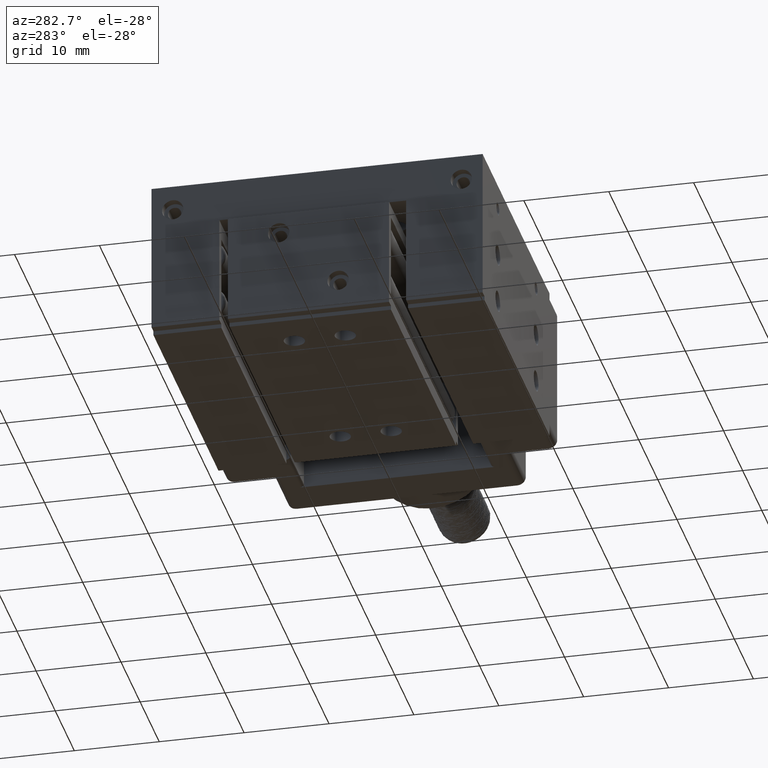
[diagram: clean part render]
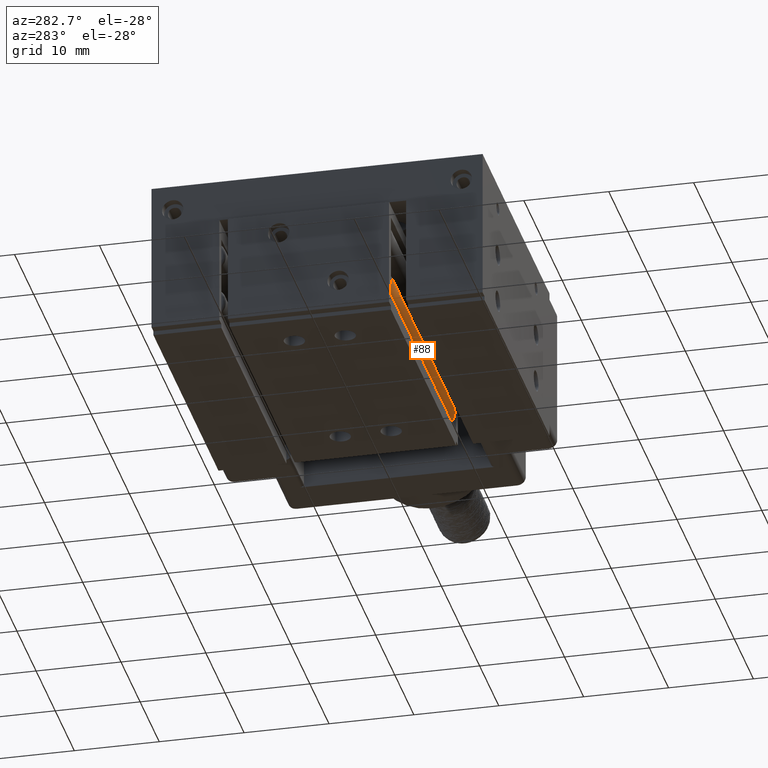
[diagram: same view with one face highlighted and labeled with its STEP entity id]
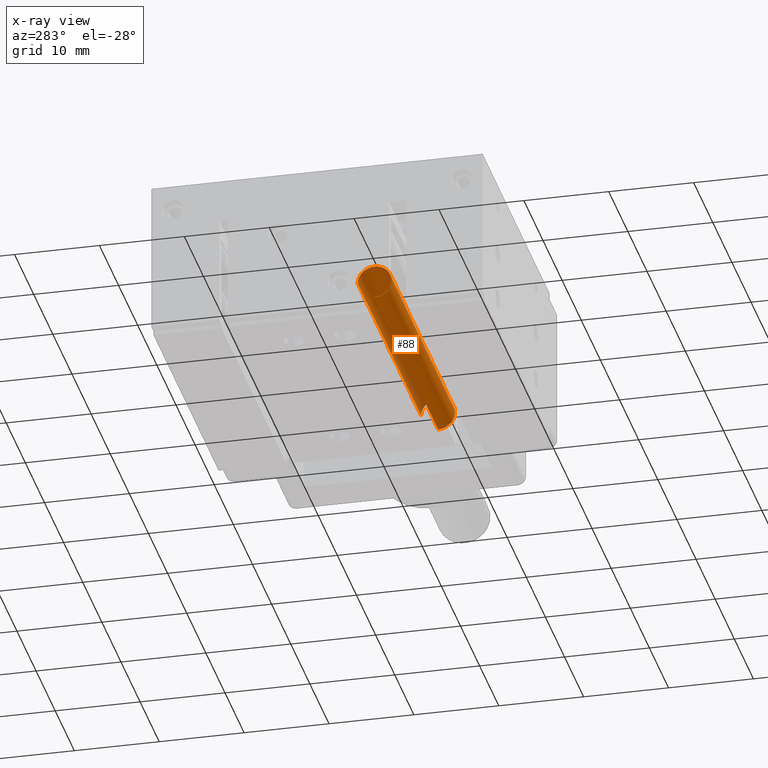
[diagram: x-ray of the same camera — body ghosted, the highlighted face saturated]
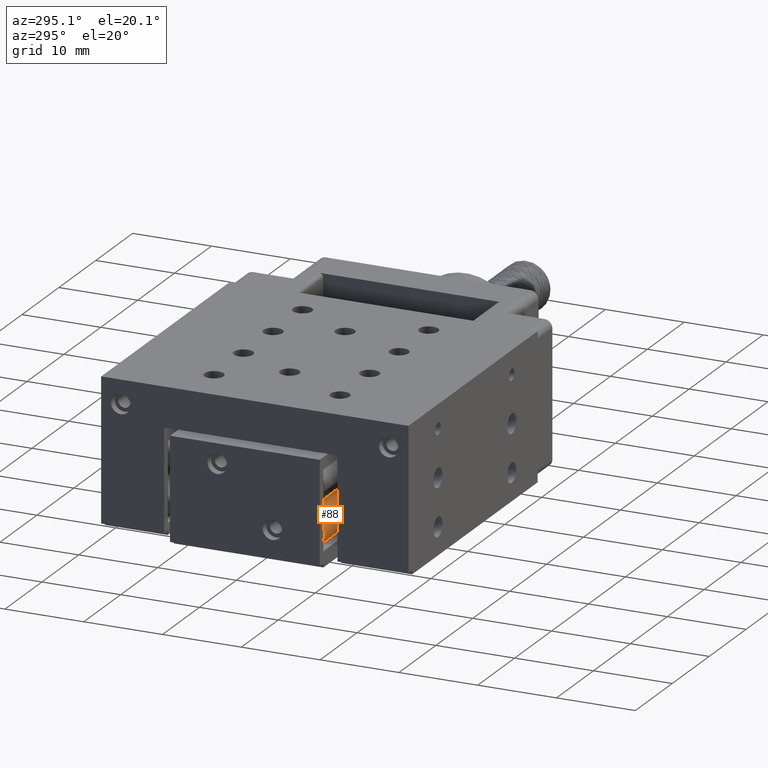
[diagram: same view with one face highlighted and labeled with its STEP entity id]
A machine part, auxiliary view. The second image highlights one B-rep face of the part: STEP entity #88.
The next image is the same camera in x-ray: the body ghosted, the highlighted face saturated — about 14% of this face is hidden behind the body in this view.
A second angle (auxiliary view) of the same face is appended — the face is thin or edge-on in the first view.
In plain terms, the highlighted cylindrical surface (edge-blend (fillet) strip) has radius 2 mm, axis along (-1, 0, 0).
Its self-contained STEP definition (entity closure, byte-faithful):
#88=ADVANCED_FACE('',(#674),#8110,.T.);
#674=FACE_OUTER_BOUND('',#1193,.T.);
#1193=EDGE_LOOP('',(#2060,#2061,#2062,#2063,#2064,#2065,#2066,#2067));
#2060=ORIENTED_EDGE('',*,*,#4655,.T.);
#2061=ORIENTED_EDGE('',*,*,#4652,.F.);
#2062=ORIENTED_EDGE('',*,*,#4647,.F.);
#2063=ORIENTED_EDGE('',*,*,#4653,.F.);
#2064=ORIENTED_EDGE('',*,*,#4656,.T.);
#2065=ORIENTED_EDGE('',*,*,#4716,.T.);
#2066=ORIENTED_EDGE('',*,*,#4787,.T.);
#2067=ORIENTED_EDGE('',*,*,#4657,.F.);
#4647=EDGE_CURVE('',#7421,#7424,#5925,.T.);
#4652=EDGE_CURVE('',#7424,#7426,#5930,.T.);
#4653=EDGE_CURVE('',#7425,#7421,#5931,.T.);
#4655=EDGE_CURVE('',#7428,#7426,#6474,.T.);
#4656=EDGE_CURVE('',#7425,#7429,#6475,.T.);
#4657=EDGE_CURVE('',#7428,#7430,#5933,.T.);
#4716=EDGE_CURVE('',#7429,#7488,#5985,.T.);
#4787=EDGE_CURVE('',#7488,#7430,#6016,.T.);
#5925=(
BOUNDED_CURVE()
B_SPLINE_CURVE(2,(#11613,#11614,#11615,#11616,#11617),.UNSPECIFIED.,.F.,
 .F.)
B_SPLINE_CURVE_WITH_KNOTS((3,2,3),(0.,2.67035375555132,5.34070751110265),
 .UNSPECIFIED.)
CURVE()
GEOMETRIC_REPRESENTATION_ITEM()
RATIONAL_B_SPLINE_CURVE((1.,0.707106781186541,1.,0.707106781186541,1.))
REPRESENTATION_ITEM('')
);
#5930=(
BOUNDED_CURVE()
B_SPLINE_CURVE(2,(#11634,#11635,#11636),.UNSPECIFIED.,.F.,.F.)
B_SPLINE_CURVE_WITH_KNOTS((3,3),(5.34070751110265,6.09380948762788),
 .UNSPECIFIED.)
CURVE()
GEOMETRIC_REPRESENTATION_ITEM()
RATIONAL_B_SPLINE_CURVE((1.,0.975568879419639,1.))
REPRESENTATION_ITEM('')
);
#5931=(
BOUNDED_CURVE()
B_SPLINE_CURVE(2,(#11637,#11638,#11639),.UNSPECIFIED.,.F.,.F.)
B_SPLINE_CURVE_WITH_KNOTS((3,3),(8.76416324317922,10.6814150222053),
 .UNSPECIFIED.)
CURVE()
GEOMETRIC_REPRESENTATION_ITEM()
RATIONAL_B_SPLINE_CURVE((1.,0.845178339076333,1.))
REPRESENTATION_ITEM('')
);
#5933=(
BOUNDED_CURVE()
B_SPLINE_CURVE(2,(#11647,#11648,#11649),.UNSPECIFIED.,.F.,.F.)
B_SPLINE_CURVE_WITH_KNOTS((3,3),(9.92831304568006,10.6814150222053),
 .UNSPECIFIED.)
CURVE()
GEOMETRIC_REPRESENTATION_ITEM()
RATIONAL_B_SPLINE_CURVE((1.,0.975568879419682,1.))
REPRESENTATION_ITEM('')
);
#5985=(
BOUNDED_CURVE()
B_SPLINE_CURVE(2,(#12020,#12021,#12022),.UNSPECIFIED.,.F.,.F.)
B_SPLINE_CURVE_WITH_KNOTS((3,3),(0.,2.25559032826608),.UNSPECIFIED.)
CURVE()
GEOMETRIC_REPRESENTATION_ITEM()
RATIONAL_B_SPLINE_CURVE((1.,0.845178339076413,1.))
REPRESENTATION_ITEM('')
);
#6016=(
BOUNDED_CURVE()
B_SPLINE_CURVE(2,(#12632,#12633,#12634,#12635,#12636),.UNSPECIFIED.,.F.,
 .F.)
B_SPLINE_CURVE_WITH_KNOTS((3,2,3),(2.25559032826608,4.92594408381742,7.59629783936875),
 .UNSPECIFIED.)
CURVE()
GEOMETRIC_REPRESENTATION_ITEM()
RATIONAL_B_SPLINE_CURVE((1.,0.707106781186546,1.,0.707106781186549,1.))
REPRESENTATION_ITEM('')
);
#6474=B_SPLINE_CURVE_WITH_KNOTS('',1,(#11643,#11644),.UNSPECIFIED.,.F.,
 .F.,(2,2),(0.,33.2000000000001),.UNSPECIFIED.);
#6475=B_SPLINE_CURVE_WITH_KNOTS('',1,(#11645,#11646),.UNSPECIFIED.,.F.,
 .F.,(2,2),(0.,33.2),.UNSPECIFIED.);
#7421=VERTEX_POINT('',#10782);
#7424=VERTEX_POINT('',#10785);
#7425=VERTEX_POINT('',#10786);
#7426=VERTEX_POINT('',#10787);
#7428=VERTEX_POINT('',#10789);
#7429=VERTEX_POINT('',#10790);
#7430=VERTEX_POINT('',#10791);
#7488=VERTEX_POINT('',#10849);
#8110=CYLINDRICAL_SURFACE('',#8662,1.99999999999998);
#8662=AXIS2_PLACEMENT_3D('',#9913,#9063,$);
#9063=DIRECTION('',(-1.,0.,3.7682219008411E-15));
#9913=CARTESIAN_POINT('',(-18.0999991892422,-6.70799999446797,4.00004553955107));
#10782=CARTESIAN_POINT('',(-34.6999991892422,-8.514938548437,3.14273984017548));
#10785=CARTESIAN_POINT('',(-34.6999991892422,-4.90106144049927,4.85735123892658));
#10786=CARTESIAN_POINT('',(-34.6999991892422,-6.70799999446797,2.00004553955084));
#10787=CARTESIAN_POINT('',(-34.6999991892422,-4.70799999446817,4.00004553955114));
#10789=CARTESIAN_POINT('',(-1.49999918924216,-4.70799999446827,4.00004553955102));
#10790=CARTESIAN_POINT('',(-1.49999918924226,-6.70799999446797,2.00004553955075));
#10791=CARTESIAN_POINT('',(-1.49999918924214,-4.90106144049959,4.85735123892633));
#10849=CARTESIAN_POINT('',(-1.49999918924225,-8.51493854843667,3.14273984017553));
#11613=CARTESIAN_POINT('',(-34.6999991892422,-8.514938548437,3.14273984017548));
#11614=CARTESIAN_POINT('',(-34.6999991892422,-9.37224424781259,4.94967839414437));
#11615=CARTESIAN_POINT('',(-34.6999991892422,-7.5653056938437,5.80698409351993));
#11616=CARTESIAN_POINT('',(-34.6999991892422,-5.7583671398748,6.66428979289549));
#11617=CARTESIAN_POINT('',(-34.6999991892422,-4.90106144049927,4.85735123892658));
#11634=CARTESIAN_POINT('',(-34.6999991892422,-4.90106144049927,4.85735123892658));
#11635=CARTESIAN_POINT('',(-34.6999991892422,-4.70799999446797,4.45043668047549));
#11636=CARTESIAN_POINT('',(-34.6999991892422,-4.70799999446817,4.00004553955114));
#11637=CARTESIAN_POINT('',(-34.6999991892422,-6.70799999446797,2.00004553955084));
#11638=CARTESIAN_POINT('',(-34.6999991892422,-7.97278489610728,2.00004553955072));
#11639=CARTESIAN_POINT('',(-34.6999991892422,-8.514938548437,3.14273984017548));
#11643=CARTESIAN_POINT('',(-1.49999918924216,-4.70799999446827,4.00004553955102));
#11644=CARTESIAN_POINT('',(-34.6999991892422,-4.70799999446817,4.00004553955114));
#11645=CARTESIAN_POINT('',(-34.6999991892422,-6.70799999446797,2.00004553955084));
#11646=CARTESIAN_POINT('',(-1.49999918924226,-6.70799999446797,2.00004553955075));
#11647=CARTESIAN_POINT('',(-1.49999918924216,-4.70799999446827,4.00004553955102));
#11648=CARTESIAN_POINT('',(-1.49999918924215,-4.70799999446829,4.45043668047531));
#11649=CARTESIAN_POINT('',(-1.49999918924215,-4.90106144049959,4.85735123892633));
#12020=CARTESIAN_POINT('',(-1.49999918924226,-6.70799999446797,2.00004553955075));
#12021=CARTESIAN_POINT('',(-1.49999918924226,-7.97278489610703,2.000045539551));
#12022=CARTESIAN_POINT('',(-1.49999918924225,-8.51493854843666,3.14273984017553));
#12632=CARTESIAN_POINT('',(-1.49999918924225,-8.51493854843667,3.14273984017553));
#12633=CARTESIAN_POINT('',(-1.49999918924224,-9.37224424781207,4.94967839414407));
#12634=CARTESIAN_POINT('',(-1.49999918924219,-7.56530569384352,5.80698409351946));
#12635=CARTESIAN_POINT('',(-1.49999918924213,-5.75836713987499,6.66428979289485));
#12636=CARTESIAN_POINT('',(-1.49999918924214,-4.9010614404996,4.85735123892632));